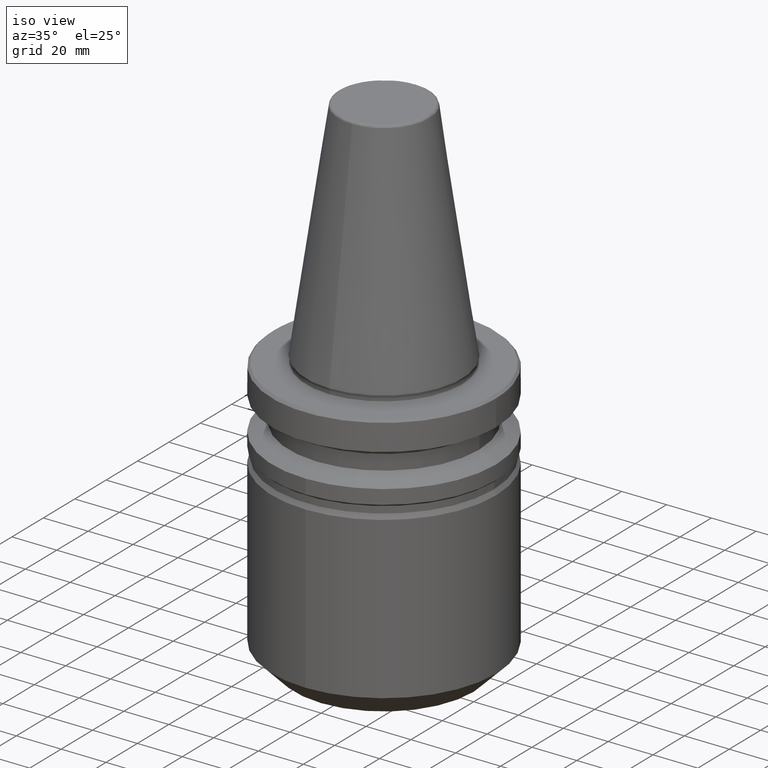
[diagram: clean part render]
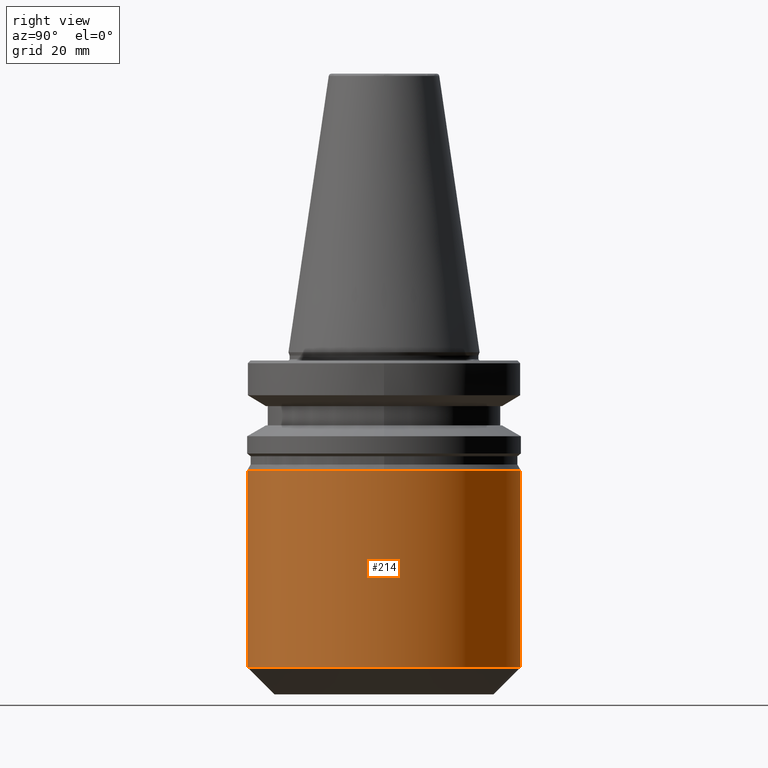
[diagram: tour spotlight — one face highlighted and labeled with its STEP entity id]
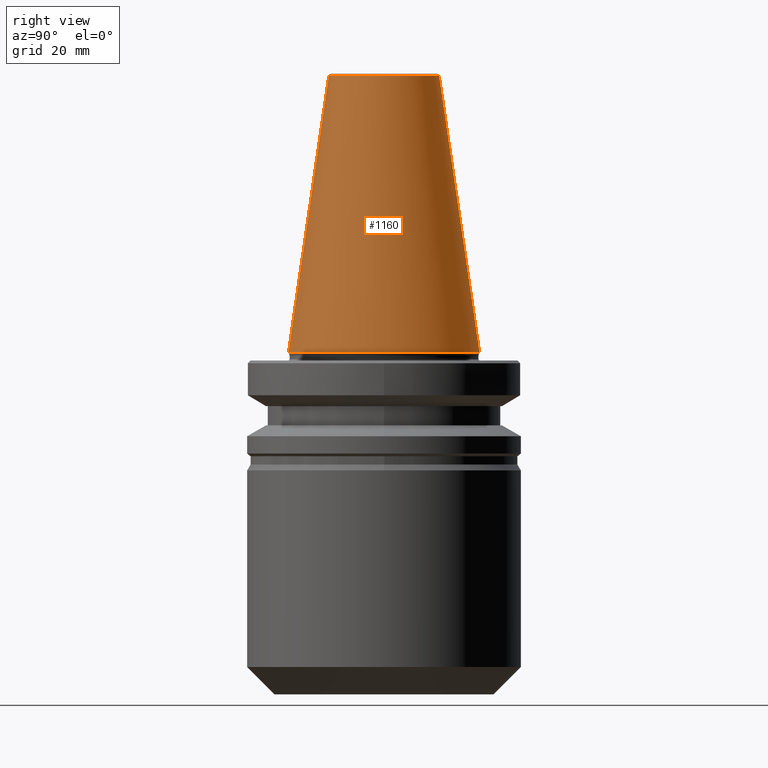
[diagram: tour spotlight — one face highlighted and labeled with its STEP entity id]
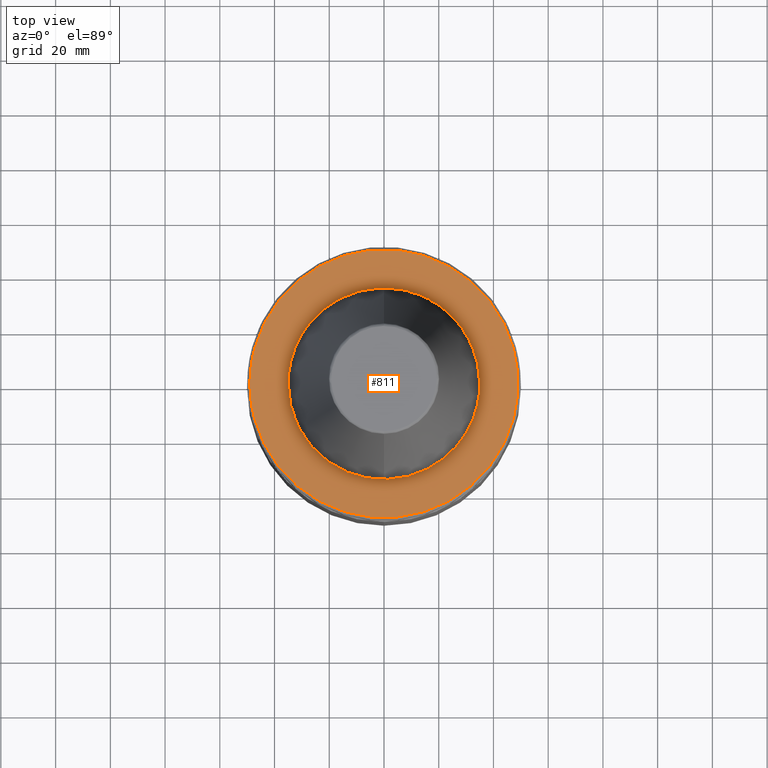
[diagram: tour spotlight — one face highlighted and labeled with its STEP entity id]
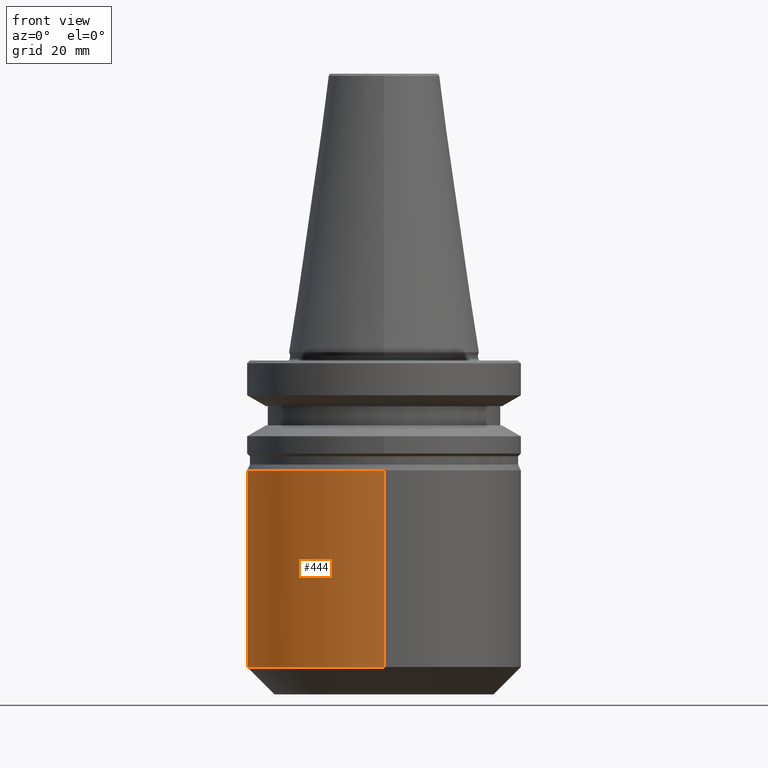
[diagram: tour spotlight — one face highlighted and labeled with its STEP entity id]
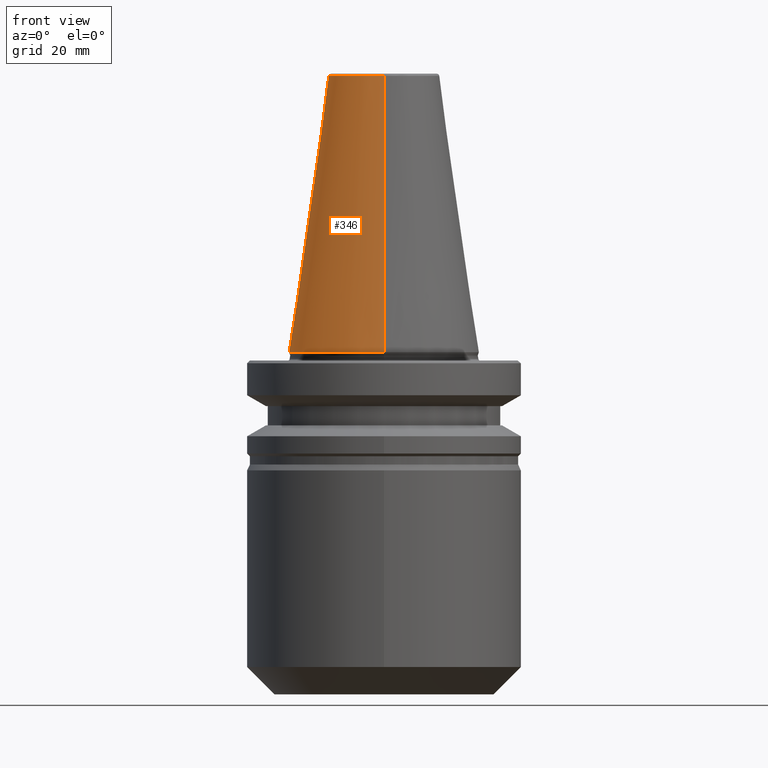
[diagram: tour spotlight — one face highlighted and labeled with its STEP entity id]
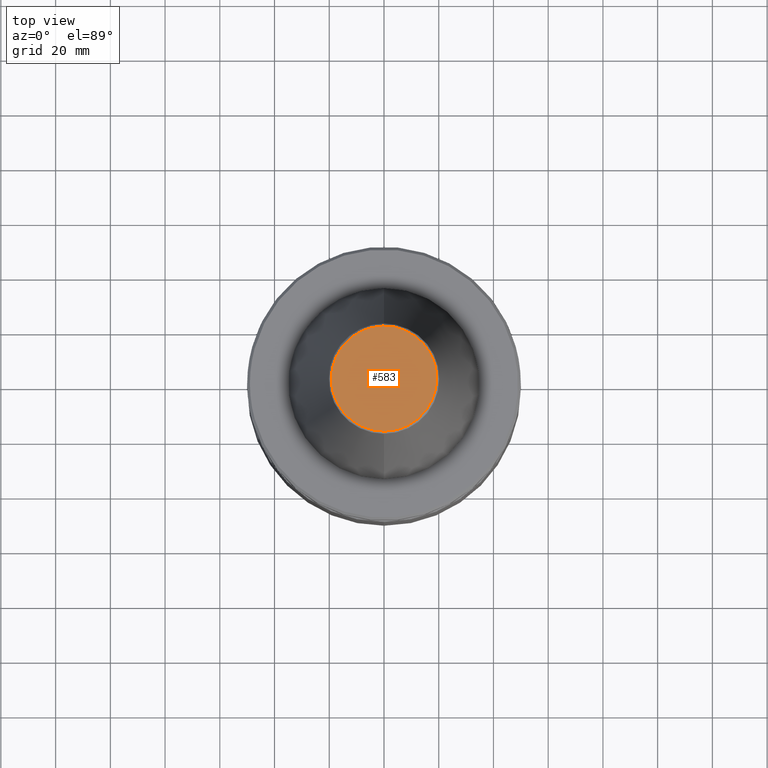
[diagram: tour spotlight — one face highlighted and labeled with its STEP entity id]
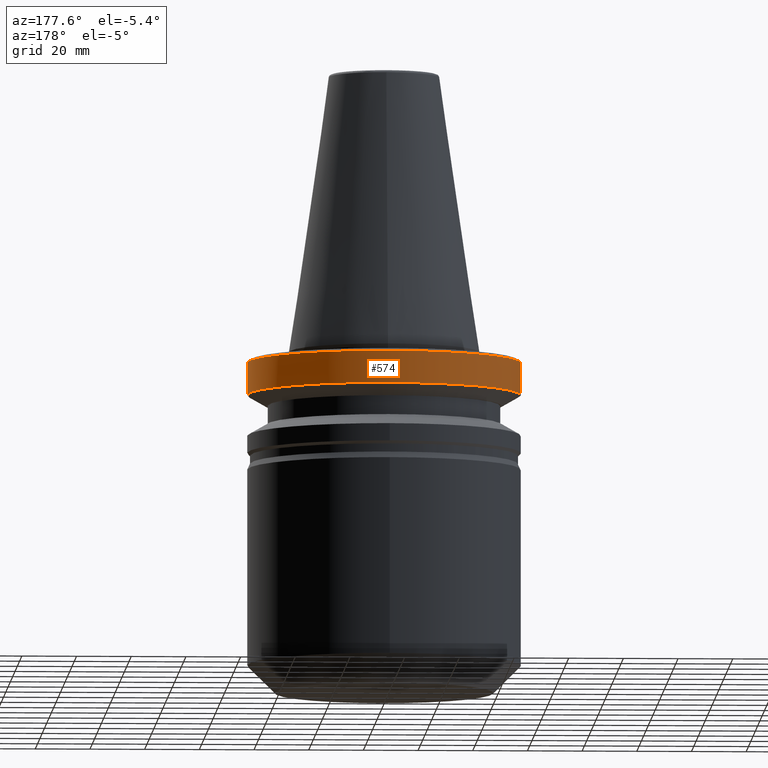
[diagram: tour spotlight — one face highlighted and labeled with its STEP entity id]
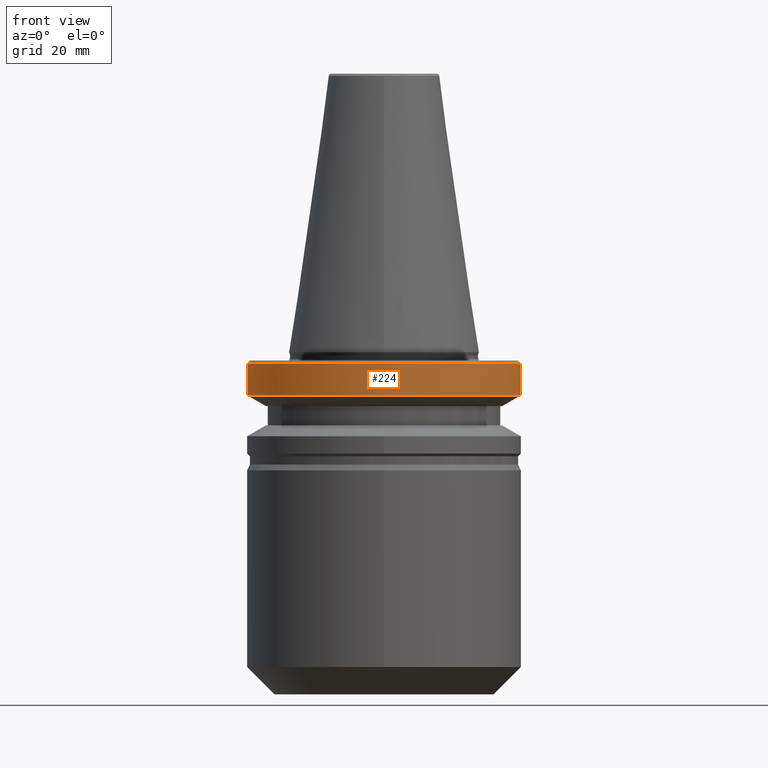
[diagram: tour spotlight — one face highlighted and labeled with its STEP entity id]
A machine part: a face-by-face anatomy tour. The part has 40 B-rep faces; the first image is the clean iso view, then the 8 largest visible faces are spotlighted one at a time (largest first), each with its STEP entity span.

Face 1 — right view, entity #214. In plain terms, the highlighted cylindrical surface (partial cylindrical patch) has radius 50 mm, axis along (0, -0, 1).
Definition (entity closure, byte-faithful):
#8 = VERTEX_POINT ( 'NONE', #1155 ) ;
#30 = EDGE_CURVE ( 'NONE', #860, #1299, #962, .T. ) ;
#48 = EDGE_CURVE ( 'NONE', #1287, #1272, #1075, .T. ) ;
#54 = FACE_OUTER_BOUND ( 'NONE', #942, .T. ) ;
#102 = CARTESIAN_POINT ( 'NONE',  ( 0.0000000000000000000, -50.00000000000000700, -43.14450692100000100 ) ) ;
#116 = CYLINDRICAL_SURFACE ( 'NONE', #936, 50.00000000000000000 ) ;
#122 = CARTESIAN_POINT ( 'NONE',  ( 6.123233995736766100E-015, 50.00000000000000000, -114.9999999999999900 ) ) ;
#123 = CARTESIAN_POINT ( 'NONE',  ( 50.00000000000001400, 0.0000000000000000000, -114.9999999999999900 ) ) ;
#173 = DIRECTION ( 'NONE',  ( 0.0000000000000000000, -1.387778780781445700E-016, 1.000000000000000000 ) ) ;
#174 = CARTESIAN_POINT ( 'NONE',  ( 6.123233995736766100E-015, 50.00000000000000000, -114.9999999999999900 ) ) ;
#214 = ADVANCED_FACE ( 'NONE', ( #54 ), #116, .T. ) ;
#398 = CARTESIAN_POINT ( 'NONE',  ( 0.0000000000000000000, -50.00000000000000000, -114.9999999999999900 ) ) ;
#464 = AXIS2_PLACEMENT_3D ( 'NONE', #1262, #1320, #1134 ) ;
#470 = CARTESIAN_POINT ( 'NONE',  ( 50.00000000000000000, 6.123233995736767700E-015, -43.14450692099999400 ) ) ;
#510 = EDGE_CURVE ( 'NONE', #932, #1299, #766, .T. ) ;
#542 = DIRECTION ( 'NONE',  ( 0.0000000000000000000, -1.000000000000000000, 0.0000000000000000000 ) ) ;
#543 = DIRECTION ( 'NONE',  ( 0.0000000000000000000, -1.387778780781445700E-016, 1.000000000000000000 ) ) ;
#544 = CARTESIAN_POINT ( 'NONE',  ( 0.0000000000000000000, -9.629649721936179300E-031, -114.9999999999999900 ) ) ;
#586 = EDGE_CURVE ( 'NONE', #8, #860, #1105, .T. ) ;
#712 = DIRECTION ( 'NONE',  ( -8.881784197001252300E-016, -1.000000000000000000, -1.387778780781445700E-016 ) ) ;
#713 = DIRECTION ( 'NONE',  ( -0.0000000000000000000, 1.387778780781445700E-016, -1.000000000000000000 ) ) ;
#714 = CARTESIAN_POINT ( 'NONE',  ( 0.0000000000000000000, -9.971952857762423800E-015, -43.14450692099999400 ) ) ;
#717 = ORIENTED_EDGE ( 'NONE', *, *, #30, .T. ) ;
#766 = LINE ( 'NONE', #773, #996 ) ;
#768 = ORIENTED_EDGE ( 'NONE', *, *, #586, .T. ) ;
#771 = DIRECTION ( 'NONE',  ( 0.0000000000000000000, -1.387778780781445700E-016, 1.000000000000000000 ) ) ;
#773 = CARTESIAN_POINT ( 'NONE',  ( 0.0000000000000000000, -50.00000000000000000, -115.0000000000000100 ) ) ;
#801 = EDGE_CURVE ( 'NONE', #932, #1287, #951, .T. ) ;
#835 = ORIENTED_EDGE ( 'NONE', *, *, #48, .T. ) ;
#860 = VERTEX_POINT ( 'NONE', #470 ) ;
#874 = ORIENTED_EDGE ( 'NONE', *, *, #1177, .T. ) ;
#916 = CARTESIAN_POINT ( 'NONE',  ( 0.0000000000000000000, 0.0000000000000000000, -115.0000000000000000 ) ) ;
#932 = VERTEX_POINT ( 'NONE', #398 ) ;
#936 = AXIS2_PLACEMENT_3D ( 'NONE', #916, #986, #1127 ) ;
#942 = EDGE_LOOP ( 'NONE', ( #835, #874, #768, #717, #1273, #1073 ) ) ;
#951 = CIRCLE ( 'NONE', #1326, 50.00000000000000000 ) ;
#962 = CIRCLE ( 'NONE', #464, 50.00000000000000000 ) ;
#986 = DIRECTION ( 'NONE',  ( 0.0000000000000000000, -1.387778780781445700E-016, 1.000000000000000000 ) ) ;
#996 = VECTOR ( 'NONE', #771, 1000.000000000000000 ) ;
#1004 = DIRECTION ( 'NONE',  ( 0.0000000000000000000, -1.387778780781445700E-016, 1.000000000000000000 ) ) ;
#1073 = ORIENTED_EDGE ( 'NONE', *, *, #801, .T. ) ;
#1075 = CIRCLE ( 'NONE', #1161, 50.00000000000000000 ) ;
#1105 = CIRCLE ( 'NONE', #1214, 50.00000000000000000 ) ;
#1127 = DIRECTION ( 'NONE',  ( 0.0000000000000000000, -1.000000000000000000, -2.775557561562891400E-016 ) ) ;
#1134 = DIRECTION ( 'NONE',  ( 1.776356839400250500E-015, -1.000000000000000000, -1.387778780781445700E-016 ) ) ;
#1135 = CARTESIAN_POINT ( 'NONE',  ( 0.0000000000000000000, -9.629649721936179300E-031, -114.9999999999999900 ) ) ;
#1155 = CARTESIAN_POINT ( 'NONE',  ( 6.123233995736765300E-015, 49.99999999999999300, -43.14450692099998700 ) ) ;
#1157 = VECTOR ( 'NONE', #173, 1000.000000000000000 ) ;
#1161 = AXIS2_PLACEMENT_3D ( 'NONE', #1135, #1004, #1237 ) ;
#1177 = EDGE_CURVE ( 'NONE', #1272, #8, #1217, .T. ) ;
#1214 = AXIS2_PLACEMENT_3D ( 'NONE', #714, #713, #712 ) ;
#1217 = LINE ( 'NONE', #174, #1157 ) ;
#1237 = DIRECTION ( 'NONE',  ( 0.0000000000000000000, -1.000000000000000000, 0.0000000000000000000 ) ) ;
#1262 = CARTESIAN_POINT ( 'NONE',  ( 0.0000000000000000000, -9.971952857762423800E-015, -43.14450692099999400 ) ) ;
#1272 = VERTEX_POINT ( 'NONE', #122 ) ;
#1273 = ORIENTED_EDGE ( 'NONE', *, *, #510, .F. ) ;
#1287 = VERTEX_POINT ( 'NONE', #123 ) ;
#1299 = VERTEX_POINT ( 'NONE', #102 ) ;
#1320 = DIRECTION ( 'NONE',  ( -0.0000000000000000000, 1.387778780781445700E-016, -1.000000000000000000 ) ) ;
#1326 = AXIS2_PLACEMENT_3D ( 'NONE', #544, #543, #542 ) ;

Face 2 — right view, entity #1160. In plain terms, the highlighted conical surface has half-angle 8.297 deg.
Definition (entity closure, byte-faithful):
#91 = AXIS2_PLACEMENT_3D ( 'NONE', #671, #670, #669 ) ;
#109 = FACE_OUTER_BOUND ( 'NONE', #493, .T. ) ;
#115 = VERTEX_POINT ( 'NONE', #1015 ) ;
#143 = AXIS2_PLACEMENT_3D ( 'NONE', #207, #205, #208 ) ;
#147 = AXIS2_PLACEMENT_3D ( 'NONE', #492, #490, #487 ) ;
#180 = EDGE_CURVE ( 'NONE', #115, #1055, #1329, .T. ) ;
#205 = DIRECTION ( 'NONE',  ( 0.0000000000000000000, -3.434447178715197200E-016, -1.000000000000000000 ) ) ;
#207 = CARTESIAN_POINT ( 'NONE',  ( 0.0000000000000000000, -3.469446951953614200E-014, -1.882981036151629500E-015 ) ) ;
#208 = DIRECTION ( 'NONE',  ( 0.0000000000000000000, 1.000000000000000000, -3.434447178715197200E-016 ) ) ;
#235 = VECTOR ( 'NONE', #1185, 1000.000000000000200 ) ;
#304 = ORIENTED_EDGE ( 'NONE', *, *, #606, .T. ) ;
#314 = CARTESIAN_POINT ( 'NONE',  ( 0.0000000000000000000, 34.92499999999996900, -1.376803197919400400E-014 ) ) ;
#331 = CARTESIAN_POINT ( 'NONE',  ( 4.277078946022131700E-015, -34.92500000000004000, 1.011182573551119800E-014 ) ) ;
#332 = DIRECTION ( 'NONE',  ( 1.767266086083724100E-017, -0.1443082272630906700, -0.9895327864927892000 ) ) ;
#338 = VERTEX_POINT ( 'NONE', #1151 ) ;
#354 = CARTESIAN_POINT ( 'NONE',  ( 2.474253865864370700E-015, -20.20381605199999700, 100.9443082270000800 ) ) ;
#386 = EDGE_CURVE ( 'NONE', #1055, #338, #457, .T. ) ;
#430 = VERTEX_POINT ( 'NONE', #829 ) ;
#457 = CIRCLE ( 'NONE', #1209, 34.92499999999999700 ) ;
#487 = DIRECTION ( 'NONE',  ( 0.0000000000000000000, 1.000000000000000000, 0.0000000000000000000 ) ) ;
#490 = DIRECTION ( 'NONE',  ( 0.0000000000000000000, -3.434447178715200600E-016, -1.000000000000000000 ) ) ;
#491 = ORIENTED_EDGE ( 'NONE', *, *, #180, .F. ) ;
#492 = CARTESIAN_POINT ( 'NONE',  ( 0.0000000000000000000, 1.848892746611746400E-029, 100.9443082270000600 ) ) ;
#493 = EDGE_LOOP ( 'NONE', ( #304, #697, #800, #491, #1238 ) ) ;
#502 = LINE ( 'NONE', #331, #1046 ) ;
#606 = EDGE_CURVE ( 'NONE', #430, #983, #1207, .T. ) ;
#669 = DIRECTION ( 'NONE',  ( 0.0000000000000000000, 1.000000000000000000, 0.0000000000000000000 ) ) ;
#670 = DIRECTION ( 'NONE',  ( 0.0000000000000000000, -3.434447178715200600E-016, -1.000000000000000000 ) ) ;
#671 = CARTESIAN_POINT ( 'NONE',  ( 0.0000000000000000000, 1.848892746611746400E-029, 100.9443082270000600 ) ) ;
#697 = ORIENTED_EDGE ( 'NONE', *, *, #1016, .T. ) ;
#800 = ORIENTED_EDGE ( 'NONE', *, *, #386, .F. ) ;
#829 = CARTESIAN_POINT ( 'NONE',  ( 20.20381605195830600, -2.071936372478352200E-009, 100.9443082269940000 ) ) ;
#833 = EDGE_CURVE ( 'NONE', #115, #430, #847, .T. ) ;
#847 = CIRCLE ( 'NONE', #147, 20.20381605199999300 ) ;
#923 = CARTESIAN_POINT ( 'NONE',  ( 0.0000000000000000000, -3.669562084625789500E-018, -1.387778780781445700E-014 ) ) ;
#983 = VERTEX_POINT ( 'NONE', #354 ) ;
#1015 = CARTESIAN_POINT ( 'NONE',  ( 0.0000000000000000000, 20.20381605199999300, 100.9443082270000500 ) ) ;
#1016 = EDGE_CURVE ( 'NONE', #983, #338, #502, .T. ) ;
#1033 = CARTESIAN_POINT ( 'NONE',  ( 0.0000000000000000000, 34.92499999999996900, -1.387778780781445700E-014 ) ) ;
#1046 = VECTOR ( 'NONE', #332, 1000.000000000000100 ) ;
#1055 = VERTEX_POINT ( 'NONE', #314 ) ;
#1146 = DIRECTION ( 'NONE',  ( 0.0000000000000000000, -1.000000000000000000, 8.692243616204474100E-017 ) ) ;
#1151 = CARTESIAN_POINT ( 'NONE',  ( 4.277078946022132500E-015, -34.92500000000004700, -1.398754363643491100E-014 ) ) ;
#1160 = ADVANCED_FACE ( 'NONE', ( #109 ), #1216, .T. ) ;
#1185 = DIRECTION ( 'NONE',  ( 0.0000000000000000000, 0.1443082272630900300, -0.9895327864927893100 ) ) ;
#1207 = CIRCLE ( 'NONE', #91, 20.20381605199999000 ) ;
#1209 = AXIS2_PLACEMENT_3D ( 'NONE', #923, #1256, #1146 ) ;
#1216 = CONICAL_SURFACE ( 'NONE', #143, 34.92500000000000400, 0.1448138465431578200 ) ;
#1238 = ORIENTED_EDGE ( 'NONE', *, *, #833, .T. ) ;
#1256 = DIRECTION ( 'NONE',  ( -0.0000000000000000000, 3.142614992711606800E-018, -1.000000000000000000 ) ) ;
#1329 = LINE ( 'NONE', #1033, #235 ) ;

Face 3 — top view, entity #811. In plain terms, the highlighted planar face has unit normal (0, 0, -1).
Definition (entity closure, byte-faithful):
#17 = CIRCLE ( 'NONE', #62, 48.99999999889558200 ) ;
#57 = AXIS2_PLACEMENT_3D ( 'NONE', #724, #722, #721 ) ;
#62 = AXIS2_PLACEMENT_3D ( 'NONE', #1340, #1342, #1065 ) ;
#73 = CARTESIAN_POINT ( 'NONE',  ( 34.99999999746265200, 0.0000000000000000000, -3.000000000159716200 ) ) ;
#74 = CARTESIAN_POINT ( 'NONE',  ( 34.99999999731420500, -69.99999999561070800, -3.000000000266193700 ) ) ;
#83 = CARTESIAN_POINT ( 'NONE',  ( -34.99999999731420500, -69.99999999561070800, -3.000000000266193700 ) ) ;
#87 = CARTESIAN_POINT ( 'NONE',  ( -34.99999999746265900, 0.0000000000000000000, -3.000000000159716700 ) ) ;
#119 = CIRCLE ( 'NONE', #1311, 48.99999999889558200 ) ;
#130 = EDGE_CURVE ( 'NONE', #795, #675, #1041, .T. ) ;
#139 =( BOUNDED_CURVE ( )  B_SPLINE_CURVE ( 3, ( #87, #83, #74, #73 ),
 .UNSPECIFIED., .F., .T. ) 
 B_SPLINE_CURVE_WITH_KNOTS ( ( 4, 4 ),
 ( 0.0000000000000000000, 1.000000000000000000 ),
 .UNSPECIFIED. ) 
 CURVE ( )  GEOMETRIC_REPRESENTATION_ITEM ( )  RATIONAL_B_SPLINE_CURVE ( ( 0.9565783004795990200, 0.3188594334931994500, 0.3188594334931994500, 0.9565783004795990200 ) ) 
 REPRESENTATION_ITEM ( '' )  );
#162 = CARTESIAN_POINT ( 'NONE',  ( -47.28506635177502900, 12.85000000000000100, -2.999999998895580300 ) ) ;
#191 = FACE_OUTER_BOUND ( 'NONE', #1042, .T. ) ;
#201 = EDGE_CURVE ( 'NONE', #795, #861, #17, .T. ) ;
#237 = ORIENTED_EDGE ( 'NONE', *, *, #508, .F. ) ;
#244 = EDGE_CURVE ( 'NONE', #1206, #861, #119, .T. ) ;
#254 = VERTEX_POINT ( 'NONE', #972 ) ;
#364 = EDGE_CURVE ( 'NONE', #1206, #917, #474, .T. ) ;
#396 = CARTESIAN_POINT ( 'NONE',  ( -48.99999999889558200, 0.0000000000000000000, -2.999999998895580300 ) ) ;
#438 =( BOUNDED_CURVE ( )  B_SPLINE_CURVE ( 3, ( #804, #1007, #779, #778 ),
 .UNSPECIFIED., .F., .F. ) 
 B_SPLINE_CURVE_WITH_KNOTS ( ( 4, 4 ),
 ( 0.0000000000000000000, 1.000000000000000000 ),
 .UNSPECIFIED. ) 
 CURVE ( )  GEOMETRIC_REPRESENTATION_ITEM ( )  RATIONAL_B_SPLINE_CURVE ( ( 0.9565783004795934700, 0.3188594334931975600, 0.3188594334931975600, 0.9565783004795934700 ) ) 
 REPRESENTATION_ITEM ( '' )  );
#442 = FACE_BOUND ( 'NONE', #1204, .T. ) ;
#469 = CARTESIAN_POINT ( 'NONE',  ( 47.28506635177502900, 12.85000000000000100, -2.999999998895580300 ) ) ;
#474 = CIRCLE ( 'NONE', #828, 48.99999999889558200 ) ;
#508 = EDGE_CURVE ( 'NONE', #254, #509, #438, .T. ) ;
#509 = VERTEX_POINT ( 'NONE', #926 ) ;
#536 = DIRECTION ( 'NONE',  ( -1.000000000000000000, 0.0000000000000000000, -0.0000000000000000000 ) ) ;
#538 = DIRECTION ( 'NONE',  ( 0.0000000000000000000, 0.0000000000000000000, -1.000000000000000000 ) ) ;
#539 = PLANE ( 'NONE',  #1008 ) ;
#554 = CARTESIAN_POINT ( 'NONE',  ( 47.28506635177502900, -12.85000000000000100, -2.999999998895580300 ) ) ;
#557 = CARTESIAN_POINT ( 'NONE',  ( 47.85248714899999100, -49.58800000000000100, -3.000000000000000000 ) ) ;
#585 = EDGE_CURVE ( 'NONE', #917, #675, #1078, .T. ) ;
#629 = ORIENTED_EDGE ( 'NONE', *, *, #585, .T. ) ;
#666 = CARTESIAN_POINT ( 'NONE',  ( -47.28506635155802200, -12.85000000000000100, -2.999999998686164700 ) ) ;
#675 = VERTEX_POINT ( 'NONE', #666 ) ;
#715 = ORIENTED_EDGE ( 'NONE', *, *, #130, .F. ) ;
#721 = DIRECTION ( 'NONE',  ( 1.000000000000000000, 0.0000000000000000000, 0.0000000000000000000 ) ) ;
#722 = DIRECTION ( 'NONE',  ( -0.0000000000000000000, -0.0000000000000000000, 1.000000000000000000 ) ) ;
#724 = CARTESIAN_POINT ( 'NONE',  ( 0.0000000000000000000, 0.0000000000000000000, -2.999999998895580300 ) ) ;
#742 = ORIENTED_EDGE ( 'NONE', *, *, #364, .T. ) ;
#778 = CARTESIAN_POINT ( 'NONE',  ( -34.99999999746265900, 0.0000000000000000000, -3.000000000159716700 ) ) ;
#779 = CARTESIAN_POINT ( 'NONE',  ( -34.99999999731419800, 69.99999999561070800, -3.000000000266194200 ) ) ;
#795 = VERTEX_POINT ( 'NONE', #554 ) ;
#804 = CARTESIAN_POINT ( 'NONE',  ( 34.99999999746265200, 0.0000000000000000000, -3.000000000159716200 ) ) ;
#811 = ADVANCED_FACE ( 'NONE', ( #191, #442 ), #539, .F. ) ;
#822 = ORIENTED_EDGE ( 'NONE', *, *, #201, .T. ) ;
#828 = AXIS2_PLACEMENT_3D ( 'NONE', #910, #1332, #927 ) ;
#845 = AXIS2_PLACEMENT_3D ( 'NONE', #1291, #1212, #1031 ) ;
#861 = VERTEX_POINT ( 'NONE', #469 ) ;
#892 = ORIENTED_EDGE ( 'NONE', *, *, #244, .F. ) ;
#910 = CARTESIAN_POINT ( 'NONE',  ( 0.0000000000000000000, 0.0000000000000000000, -2.999999998895580300 ) ) ;
#917 = VERTEX_POINT ( 'NONE', #396 ) ;
#926 = CARTESIAN_POINT ( 'NONE',  ( -34.99999999746265900, 0.0000000000000000000, -3.000000000159716700 ) ) ;
#927 = DIRECTION ( 'NONE',  ( 1.000000000000000000, 0.0000000000000000000, 0.0000000000000000000 ) ) ;
#934 = DIRECTION ( 'NONE',  ( 0.0000000000000000000, 0.0000000000000000000, -1.000000000000000000 ) ) ;
#935 = CARTESIAN_POINT ( 'NONE',  ( 0.0000000000000000000, 0.0000000000000000000, -2.999999998895580300 ) ) ;
#972 = CARTESIAN_POINT ( 'NONE',  ( 34.99999999746265200, 0.0000000000000000000, -3.000000000159716200 ) ) ;
#1007 = CARTESIAN_POINT ( 'NONE',  ( 34.99999999731419800, 69.99999999561070800, -3.000000000266194200 ) ) ;
#1008 = AXIS2_PLACEMENT_3D ( 'NONE', #557, #538, #536 ) ;
#1019 = DIRECTION ( 'NONE',  ( -1.000000000000000000, 0.0000000000000000000, 0.0000000000000000000 ) ) ;
#1031 = DIRECTION ( 'NONE',  ( -1.000000000000000000, 0.0000000000000000000, 0.0000000000000000000 ) ) ;
#1041 = CIRCLE ( 'NONE', #845, 48.99999999836879300 ) ;
#1042 = EDGE_LOOP ( 'NONE', ( #892, #742, #629, #715, #822 ) ) ;
#1065 = DIRECTION ( 'NONE',  ( 1.000000000000000000, 0.0000000000000000000, 0.0000000000000000000 ) ) ;
#1078 = CIRCLE ( 'NONE', #57, 48.99999999889558200 ) ;
#1204 = EDGE_LOOP ( 'NONE', ( #237, #1240 ) ) ;
#1206 = VERTEX_POINT ( 'NONE', #162 ) ;
#1212 = DIRECTION ( 'NONE',  ( 0.0000000000000000000, 0.0000000000000000000, -1.000000000000000000 ) ) ;
#1240 = ORIENTED_EDGE ( 'NONE', *, *, #1308, .F. ) ;
#1291 = CARTESIAN_POINT ( 'NONE',  ( 0.0000000000000000000, 0.0000000000000000000, -2.999999998368790200 ) ) ;
#1308 = EDGE_CURVE ( 'NONE', #509, #254, #139, .T. ) ;
#1311 = AXIS2_PLACEMENT_3D ( 'NONE', #935, #934, #1019 ) ;
#1332 = DIRECTION ( 'NONE',  ( -0.0000000000000000000, -0.0000000000000000000, 1.000000000000000000 ) ) ;
#1340 = CARTESIAN_POINT ( 'NONE',  ( 0.0000000000000000000, 0.0000000000000000000, -2.999999998895580300 ) ) ;
#1342 = DIRECTION ( 'NONE',  ( -0.0000000000000000000, -0.0000000000000000000, 1.000000000000000000 ) ) ;

Face 4 — front view, entity #444. In plain terms, the highlighted cylindrical surface (partial cylindrical patch) has radius 50 mm, axis along (0, -0, 1).
Definition (entity closure, byte-faithful):
#8 = VERTEX_POINT ( 'NONE', #1155 ) ;
#51 = DIRECTION ( 'NONE',  ( 0.0000000000000000000, -1.000000000000000000, 0.0000000000000000000 ) ) ;
#52 = DIRECTION ( 'NONE',  ( 0.0000000000000000000, -1.387778780781445700E-016, 1.000000000000000000 ) ) ;
#55 = CARTESIAN_POINT ( 'NONE',  ( 0.0000000000000000000, -9.629649721936179300E-031, -114.9999999999999900 ) ) ;
#102 = CARTESIAN_POINT ( 'NONE',  ( 0.0000000000000000000, -50.00000000000000700, -43.14450692100000100 ) ) ;
#112 = CARTESIAN_POINT ( 'NONE',  ( 0.0000000000000000000, 0.0000000000000000000, -115.0000000000000000 ) ) ;
#122 = CARTESIAN_POINT ( 'NONE',  ( 6.123233995736766100E-015, 50.00000000000000000, -114.9999999999999900 ) ) ;
#173 = DIRECTION ( 'NONE',  ( 0.0000000000000000000, -1.387778780781445700E-016, 1.000000000000000000 ) ) ;
#174 = CARTESIAN_POINT ( 'NONE',  ( 6.123233995736766100E-015, 50.00000000000000000, -114.9999999999999900 ) ) ;
#176 = CIRCLE ( 'NONE', #667, 50.00000000000000000 ) ;
#202 = ORIENTED_EDGE ( 'NONE', *, *, #1346, .T. ) ;
#217 = ORIENTED_EDGE ( 'NONE', *, *, #1036, .T. ) ;
#241 = DIRECTION ( 'NONE',  ( 0.0000000000000000000, -1.000000000000000000, 0.0000000000000000000 ) ) ;
#242 = DIRECTION ( 'NONE',  ( 0.0000000000000000000, -1.387778780781445700E-016, 1.000000000000000000 ) ) ;
#243 = CARTESIAN_POINT ( 'NONE',  ( 0.0000000000000000000, -9.629649721936179300E-031, -114.9999999999999900 ) ) ;
#305 = DIRECTION ( 'NONE',  ( 0.0000000000000000000, -1.000000000000000000, -1.387778780781445700E-016 ) ) ;
#310 = DIRECTION ( 'NONE',  ( -0.0000000000000000000, 1.387778780781445700E-016, -1.000000000000000000 ) ) ;
#311 = CARTESIAN_POINT ( 'NONE',  ( 0.0000000000000000000, -9.971952857762423800E-015, -43.14450692099999400 ) ) ;
#350 = CIRCLE ( 'NONE', #374, 50.00000000000000000 ) ;
#374 = AXIS2_PLACEMENT_3D ( 'NONE', #243, #242, #241 ) ;
#398 = CARTESIAN_POINT ( 'NONE',  ( 0.0000000000000000000, -50.00000000000000000, -114.9999999999999900 ) ) ;
#440 = CIRCLE ( 'NONE', #1174, 50.00000000000000000 ) ;
#444 = ADVANCED_FACE ( 'NONE', ( #820 ), #841, .T. ) ;
#510 = EDGE_CURVE ( 'NONE', #932, #1299, #766, .T. ) ;
#547 = CARTESIAN_POINT ( 'NONE',  ( -50.00000000000001400, 6.123233995736767700E-015, -114.9999999999999900 ) ) ;
#549 = VERTEX_POINT ( 'NONE', #757 ) ;
#602 = AXIS2_PLACEMENT_3D ( 'NONE', #112, #830, #827 ) ;
#624 = DIRECTION ( 'NONE',  ( 0.0000000000000000000, -1.000000000000000000, -1.387778780781445700E-016 ) ) ;
#625 = DIRECTION ( 'NONE',  ( -0.0000000000000000000, 1.387778780781445700E-016, -1.000000000000000000 ) ) ;
#630 = CARTESIAN_POINT ( 'NONE',  ( 0.0000000000000000000, -9.971952857762423800E-015, -43.14450692099999400 ) ) ;
#667 = AXIS2_PLACEMENT_3D ( 'NONE', #55, #52, #51 ) ;
#681 = EDGE_CURVE ( 'NONE', #549, #8, #1228, .T. ) ;
#730 = ORIENTED_EDGE ( 'NONE', *, *, #681, .T. ) ;
#757 = CARTESIAN_POINT ( 'NONE',  ( -50.00000000000000000, 0.0000000000000000000, -43.14450692099999400 ) ) ;
#766 = LINE ( 'NONE', #773, #996 ) ;
#771 = DIRECTION ( 'NONE',  ( 0.0000000000000000000, -1.387778780781445700E-016, 1.000000000000000000 ) ) ;
#773 = CARTESIAN_POINT ( 'NONE',  ( 0.0000000000000000000, -50.00000000000000000, -115.0000000000000100 ) ) ;
#798 = VERTEX_POINT ( 'NONE', #547 ) ;
#820 = FACE_OUTER_BOUND ( 'NONE', #1294, .T. ) ;
#827 = DIRECTION ( 'NONE',  ( 0.0000000000000000000, -1.000000000000000000, -2.775557561562891400E-016 ) ) ;
#830 = DIRECTION ( 'NONE',  ( 0.0000000000000000000, -1.387778780781445700E-016, 1.000000000000000000 ) ) ;
#841 = CYLINDRICAL_SURFACE ( 'NONE', #602, 50.00000000000000000 ) ;
#842 = AXIS2_PLACEMENT_3D ( 'NONE', #630, #625, #624 ) ;
#853 = ORIENTED_EDGE ( 'NONE', *, *, #1177, .F. ) ;
#932 = VERTEX_POINT ( 'NONE', #398 ) ;
#996 = VECTOR ( 'NONE', #771, 1000.000000000000000 ) ;
#1036 = EDGE_CURVE ( 'NONE', #1299, #549, #440, .T. ) ;
#1122 = EDGE_CURVE ( 'NONE', #798, #932, #350, .T. ) ;
#1155 = CARTESIAN_POINT ( 'NONE',  ( 6.123233995736765300E-015, 49.99999999999999300, -43.14450692099998700 ) ) ;
#1157 = VECTOR ( 'NONE', #173, 1000.000000000000000 ) ;
#1174 = AXIS2_PLACEMENT_3D ( 'NONE', #311, #310, #305 ) ;
#1177 = EDGE_CURVE ( 'NONE', #1272, #8, #1217, .T. ) ;
#1217 = LINE ( 'NONE', #174, #1157 ) ;
#1228 = CIRCLE ( 'NONE', #842, 50.00000000000000000 ) ;
#1268 = ORIENTED_EDGE ( 'NONE', *, *, #1122, .T. ) ;
#1272 = VERTEX_POINT ( 'NONE', #122 ) ;
#1294 = EDGE_LOOP ( 'NONE', ( #853, #202, #1268, #1313, #217, #730 ) ) ;
#1299 = VERTEX_POINT ( 'NONE', #102 ) ;
#1313 = ORIENTED_EDGE ( 'NONE', *, *, #510, .T. ) ;
#1346 = EDGE_CURVE ( 'NONE', #1272, #798, #176, .T. ) ;

Face 5 — front view, entity #346. In plain terms, the highlighted conical surface has half-angle 8.297 deg.
Definition (entity closure, byte-faithful):
#41 = ORIENTED_EDGE ( 'NONE', *, *, #1045, .T. ) ;
#115 = VERTEX_POINT ( 'NONE', #1015 ) ;
#160 = CIRCLE ( 'NONE', #735, 20.20381605199999000 ) ;
#180 = EDGE_CURVE ( 'NONE', #115, #1055, #1329, .T. ) ;
#213 = ORIENTED_EDGE ( 'NONE', *, *, #180, .T. ) ;
#235 = VECTOR ( 'NONE', #1185, 1000.000000000000200 ) ;
#249 = ORIENTED_EDGE ( 'NONE', *, *, #913, .T. ) ;
#298 = DIRECTION ( 'NONE',  ( 0.0000000000000000000, 1.000000000000000000, 0.0000000000000000000 ) ) ;
#299 = DIRECTION ( 'NONE',  ( 0.0000000000000000000, -3.434447178715200600E-016, -1.000000000000000000 ) ) ;
#300 = CARTESIAN_POINT ( 'NONE',  ( 0.0000000000000000000, 1.848892746611746400E-029, 100.9443082270000600 ) ) ;
#314 = CARTESIAN_POINT ( 'NONE',  ( 0.0000000000000000000, 34.92499999999996900, -1.376803197919400400E-014 ) ) ;
#331 = CARTESIAN_POINT ( 'NONE',  ( 4.277078946022131700E-015, -34.92500000000004000, 1.011182573551119800E-014 ) ) ;
#332 = DIRECTION ( 'NONE',  ( 1.767266086083724100E-017, -0.1443082272630906700, -0.9895327864927892000 ) ) ;
#338 = VERTEX_POINT ( 'NONE', #1151 ) ;
#346 = ADVANCED_FACE ( 'NONE', ( #477 ), #592, .T. ) ;
#354 = CARTESIAN_POINT ( 'NONE',  ( 2.474253865864370700E-015, -20.20381605199999700, 100.9443082270000800 ) ) ;
#384 = DIRECTION ( 'NONE',  ( 0.0000000000000000000, -1.000000000000000000, 8.692243616204474100E-017 ) ) ;
#385 = DIRECTION ( 'NONE',  ( -0.0000000000000000000, 3.142614992711606800E-018, -1.000000000000000000 ) ) ;
#387 = CARTESIAN_POINT ( 'NONE',  ( 0.0000000000000000000, -3.669562084625789500E-018, -1.387778780781445700E-014 ) ) ;
#400 = DIRECTION ( 'NONE',  ( 0.0000000000000000000, 1.000000000000000000, 0.0000000000000000000 ) ) ;
#401 = DIRECTION ( 'NONE',  ( 0.0000000000000000000, -3.434447178715200600E-016, -1.000000000000000000 ) ) ;
#402 = CARTESIAN_POINT ( 'NONE',  ( 0.0000000000000000000, 1.848892746611746400E-029, 100.9443082270000600 ) ) ;
#475 = VERTEX_POINT ( 'NONE', #794 ) ;
#476 = ORIENTED_EDGE ( 'NONE', *, *, #1016, .F. ) ;
#477 = FACE_OUTER_BOUND ( 'NONE', #1327, .T. ) ;
#497 = ORIENTED_EDGE ( 'NONE', *, *, #928, .F. ) ;
#502 = LINE ( 'NONE', #331, #1046 ) ;
#592 = CONICAL_SURFACE ( 'NONE', #1056, 34.92500000000000400, 0.1448138465431578200 ) ;
#735 = AXIS2_PLACEMENT_3D ( 'NONE', #300, #299, #298 ) ;
#789 = CIRCLE ( 'NONE', #1133, 20.20381605199999300 ) ;
#794 = CARTESIAN_POINT ( 'NONE',  ( -20.20381605195830600, -6.047361685486881700E-010, 100.9443082269940000 ) ) ;
#878 = AXIS2_PLACEMENT_3D ( 'NONE', #387, #385, #384 ) ;
#913 = EDGE_CURVE ( 'NONE', #475, #115, #789, .T. ) ;
#928 = EDGE_CURVE ( 'NONE', #338, #1055, #1002, .T. ) ;
#983 = VERTEX_POINT ( 'NONE', #354 ) ;
#1002 = CIRCLE ( 'NONE', #878, 34.92499999999999700 ) ;
#1015 = CARTESIAN_POINT ( 'NONE',  ( 0.0000000000000000000, 20.20381605199999300, 100.9443082270000500 ) ) ;
#1016 = EDGE_CURVE ( 'NONE', #983, #338, #502, .T. ) ;
#1033 = CARTESIAN_POINT ( 'NONE',  ( 0.0000000000000000000, 34.92499999999996900, -1.387778780781445700E-014 ) ) ;
#1045 = EDGE_CURVE ( 'NONE', #983, #475, #160, .T. ) ;
#1046 = VECTOR ( 'NONE', #332, 1000.000000000000100 ) ;
#1055 = VERTEX_POINT ( 'NONE', #314 ) ;
#1056 = AXIS2_PLACEMENT_3D ( 'NONE', #1306, #1247, #1114 ) ;
#1114 = DIRECTION ( 'NONE',  ( 0.0000000000000000000, 1.000000000000000000, -3.434447178715197200E-016 ) ) ;
#1133 = AXIS2_PLACEMENT_3D ( 'NONE', #402, #401, #400 ) ;
#1151 = CARTESIAN_POINT ( 'NONE',  ( 4.277078946022132500E-015, -34.92500000000004700, -1.398754363643491100E-014 ) ) ;
#1185 = DIRECTION ( 'NONE',  ( 0.0000000000000000000, 0.1443082272630900300, -0.9895327864927893100 ) ) ;
#1247 = DIRECTION ( 'NONE',  ( 0.0000000000000000000, -3.434447178715197200E-016, -1.000000000000000000 ) ) ;
#1306 = CARTESIAN_POINT ( 'NONE',  ( 0.0000000000000000000, -3.469446951953614200E-014, -1.882981036151629500E-015 ) ) ;
#1327 = EDGE_LOOP ( 'NONE', ( #476, #41, #249, #213, #497 ) ) ;
#1329 = LINE ( 'NONE', #1033, #235 ) ;

Face 6 — top view, entity #583. In plain terms, the highlighted planar face has unit normal (0, 0, -1).
Definition (entity closure, byte-faithful):
#67 = CARTESIAN_POINT ( 'NONE',  ( 19.21428326074989500, 0.0000000000000000000, 101.7999999998288700 ) ) ;
#68 = CARTESIAN_POINT ( 'NONE',  ( 19.21428326062251600, 38.42856652208892900, 101.7999999997148400 ) ) ;
#78 = CARTESIAN_POINT ( 'NONE',  ( -19.21428326074989800, 0.0000000000000000000, 101.7999999998288700 ) ) ;
#81 = CARTESIAN_POINT ( 'NONE',  ( -19.21428326062251600, 38.42856652208892900, 101.7999999997148400 ) ) ;
#131 = CARTESIAN_POINT ( 'NONE',  ( 19.21428326074989500, 0.0000000000000000000, 101.7999999998288700 ) ) ;
#177 = CARTESIAN_POINT ( 'NONE',  ( -19.21428326074989800, 0.0000000000000000000, 101.7999999998288700 ) ) ;
#428 = EDGE_CURVE ( 'NONE', #1289, #1225, #1171, .T. ) ;
#583 = ADVANCED_FACE ( 'NONE', ( #918 ), #736, .F. ) ;
#632 = ORIENTED_EDGE ( 'NONE', *, *, #428, .F. ) ;
#732 = DIRECTION ( 'NONE',  ( -1.000000000000000000, 0.0000000000000000000, -0.0000000000000000000 ) ) ;
#734 = DIRECTION ( 'NONE',  ( 0.0000000000000000000, 0.0000000000000000000, -1.000000000000000000 ) ) ;
#736 = PLANE ( 'NONE',  #1085 ) ;
#747 = CARTESIAN_POINT ( 'NONE',  ( 19.44485466400000500, -19.44485466400000500, 101.8000000000000000 ) ) ;
#834 = CARTESIAN_POINT ( 'NONE',  ( -19.21428326074989800, 0.0000000000000000000, 101.7999999998288700 ) ) ;
#840 = CARTESIAN_POINT ( 'NONE',  ( 19.21428326074989500, 0.0000000000000000000, 101.7999999998288700 ) ) ;
#849 = CARTESIAN_POINT ( 'NONE',  ( -19.21428326062251200, -38.42856652208891400, 101.7999999997147900 ) ) ;
#852 = CARTESIAN_POINT ( 'NONE',  ( 19.21428326062251200, -38.42856652208891400, 101.7999999997147900 ) ) ;
#918 = FACE_OUTER_BOUND ( 'NONE', #919, .T. ) ;
#919 = EDGE_LOOP ( 'NONE', ( #1044, #632 ) ) ;
#1044 = ORIENTED_EDGE ( 'NONE', *, *, #1335, .F. ) ;
#1068 =( BOUNDED_CURVE ( )  B_SPLINE_CURVE ( 3, ( #78, #81, #68, #67 ),
 .UNSPECIFIED., .F., .T. ) 
 B_SPLINE_CURVE_WITH_KNOTS ( ( 4, 4 ),
 ( 0.0000000000000000000, 1.000000000000000000 ),
 .UNSPECIFIED. ) 
 CURVE ( )  GEOMETRIC_REPRESENTATION_ITEM ( )  RATIONAL_B_SPLINE_CURVE ( ( 0.9606698271414653200, 0.3202232757138215900, 0.3202232757138215900, 0.9606698271414653200 ) ) 
 REPRESENTATION_ITEM ( '' )  );
#1085 = AXIS2_PLACEMENT_3D ( 'NONE', #747, #734, #732 ) ;
#1171 =( BOUNDED_CURVE ( )  B_SPLINE_CURVE ( 3, ( #840, #852, #849, #834 ),
 .UNSPECIFIED., .F., .F. ) 
 B_SPLINE_CURVE_WITH_KNOTS ( ( 4, 4 ),
 ( 0.0000000000000000000, 1.000000000000000000 ),
 .UNSPECIFIED. ) 
 CURVE ( )  GEOMETRIC_REPRESENTATION_ITEM ( )  RATIONAL_B_SPLINE_CURVE ( ( 0.9606698271414647600, 0.3202232757138215300, 0.3202232757138215300, 0.9606698271414647600 ) ) 
 REPRESENTATION_ITEM ( '' )  );
#1225 = VERTEX_POINT ( 'NONE', #177 ) ;
#1289 = VERTEX_POINT ( 'NONE', #131 ) ;
#1335 = EDGE_CURVE ( 'NONE', #1225, #1289, #1068, .T. ) ;

Face 7 — auxiliary view, entity #574. In plain terms, the highlighted cylindrical surface (partial cylindrical patch) has radius 50 mm, axis along (0, 0, 1).
Definition (entity closure, byte-faithful):
#56 = CIRCLE ( 'NONE', #1316, 50.00000000000000000 ) ;
#117 = VERTEX_POINT ( 'NONE', #1184 ) ;
#188 = CIRCLE ( 'NONE', #460, 50.00000000000000000 ) ;
#189 = EDGE_CURVE ( 'NONE', #960, #1061, #770, .T. ) ;
#222 = EDGE_CURVE ( 'NONE', #494, #696, #56, .T. ) ;
#238 = EDGE_CURVE ( 'NONE', #1061, #247, #188, .T. ) ;
#246 = DIRECTION ( 'NONE',  ( -1.000000000000000000, 0.0000000000000000000, 3.469446951887684500E-017 ) ) ;
#247 = VERTEX_POINT ( 'NONE', #968 ) ;
#248 = DIRECTION ( 'NONE',  ( -0.0000000000000000000, -0.0000000000000000000, 1.000000000000000000 ) ) ;
#250 = CARTESIAN_POINT ( 'NONE',  ( 0.0000000000000000000, 0.0000000000000000000, -4.000000000950146600 ) ) ;
#266 = ORIENTED_EDGE ( 'NONE', *, *, #222, .F. ) ;
#292 = CARTESIAN_POINT ( 'NONE',  ( 50.00000000000000000, 0.0000000000000000000, -4.000000000950132400 ) ) ;
#391 = CARTESIAN_POINT ( 'NONE',  ( 50.00000000000000000, 0.0000000000000000000, -15.72263360760098300 ) ) ;
#393 = ORIENTED_EDGE ( 'NONE', *, *, #672, .T. ) ;
#460 = AXIS2_PLACEMENT_3D ( 'NONE', #975, #939, #938 ) ;
#494 = VERTEX_POINT ( 'NONE', #790 ) ;
#574 = ADVANCED_FACE ( 'NONE', ( #1054 ), #1104, .T. ) ;
#604 = AXIS2_PLACEMENT_3D ( 'NONE', #780, #750, #752 ) ;
#619 = CARTESIAN_POINT ( 'NONE',  ( -50.00000000000000000, 6.123233995736766100E-015, -4.000000000950132400 ) ) ;
#639 = DIRECTION ( 'NONE',  ( 1.000000000000000000, 0.0000000000000000000, 0.0000000000000000000 ) ) ;
#641 = DIRECTION ( 'NONE',  ( -0.0000000000000000000, -0.0000000000000000000, 1.000000000000000000 ) ) ;
#642 = CARTESIAN_POINT ( 'NONE',  ( 0.0000000000000000000, 0.0000000000000000000, -15.72263360760098300 ) ) ;
#647 = DIRECTION ( 'NONE',  ( 0.0000000000000000000, 0.0000000000000000000, 1.000000000000000000 ) ) ;
#648 = CARTESIAN_POINT ( 'NONE',  ( -50.00000000000000000, 6.123233995736766100E-015, -15.70022000299999700 ) ) ;
#672 = EDGE_CURVE ( 'NONE', #960, #117, #1057, .T. ) ;
#679 = EDGE_CURVE ( 'NONE', #117, #696, #1239, .T. ) ;
#692 = EDGE_LOOP ( 'NONE', ( #393, #902, #266, #888, #1077, #889 ) ) ;
#696 = VERTEX_POINT ( 'NONE', #619 ) ;
#750 = DIRECTION ( 'NONE',  ( 0.0000000000000000000, 0.0000000000000000000, 1.000000000000000000 ) ) ;
#752 = DIRECTION ( 'NONE',  ( 1.000000000000000000, 0.0000000000000000000, 0.0000000000000000000 ) ) ;
#770 = LINE ( 'NONE', #1300, #1189 ) ;
#780 = CARTESIAN_POINT ( 'NONE',  ( 0.0000000000000000000, 0.0000000000000000000, -15.70022000299999700 ) ) ;
#790 = CARTESIAN_POINT ( 'NONE',  ( -48.13724170496111300, 13.52057546993295400, -4.000000000950132400 ) ) ;
#851 = AXIS2_PLACEMENT_3D ( 'NONE', #642, #641, #639 ) ;
#888 = ORIENTED_EDGE ( 'NONE', *, *, #1112, .F. ) ;
#889 = ORIENTED_EDGE ( 'NONE', *, *, #189, .F. ) ;
#902 = ORIENTED_EDGE ( 'NONE', *, *, #679, .T. ) ;
#938 = DIRECTION ( 'NONE',  ( 1.000000000000000000, 0.0000000000000000000, 0.0000000000000000000 ) ) ;
#939 = DIRECTION ( 'NONE',  ( -0.0000000000000000000, -0.0000000000000000000, 1.000000000000000000 ) ) ;
#960 = VERTEX_POINT ( 'NONE', #391 ) ;
#968 = CARTESIAN_POINT ( 'NONE',  ( 48.13724170496111300, 13.52057546993295400, -4.000000000950132400 ) ) ;
#975 = CARTESIAN_POINT ( 'NONE',  ( 0.0000000000000000000, 0.0000000000000000000, -4.000000000950132400 ) ) ;
#1049 = DIRECTION ( 'NONE',  ( -0.0000000000000000000, -0.0000000000000000000, 1.000000000000000000 ) ) ;
#1054 = FACE_OUTER_BOUND ( 'NONE', #692, .T. ) ;
#1057 = CIRCLE ( 'NONE', #851, 50.00000000000000000 ) ;
#1061 = VERTEX_POINT ( 'NONE', #292 ) ;
#1071 = DIRECTION ( 'NONE',  ( 0.0000000000000000000, 0.0000000000000000000, 1.000000000000000000 ) ) ;
#1077 = ORIENTED_EDGE ( 'NONE', *, *, #238, .F. ) ;
#1100 = CARTESIAN_POINT ( 'NONE',  ( 0.0000000000000000000, 0.0000000000000000000, -4.000000000950132400 ) ) ;
#1104 = CYLINDRICAL_SURFACE ( 'NONE', #604, 50.00000000000000000 ) ;
#1112 = EDGE_CURVE ( 'NONE', #247, #494, #1263, .T. ) ;
#1184 = CARTESIAN_POINT ( 'NONE',  ( -50.00000000000000000, 6.123233995736766100E-015, -15.72263360760098300 ) ) ;
#1189 = VECTOR ( 'NONE', #1071, 1000.000000000000000 ) ;
#1239 = LINE ( 'NONE', #648, #1259 ) ;
#1259 = VECTOR ( 'NONE', #647, 1000.000000000000000 ) ;
#1263 = CIRCLE ( 'NONE', #1303, 50.00000000095014500 ) ;
#1269 = DIRECTION ( 'NONE',  ( 1.000000000000000000, 0.0000000000000000000, 0.0000000000000000000 ) ) ;
#1300 = CARTESIAN_POINT ( 'NONE',  ( 50.00000000000000000, 0.0000000000000000000, -15.70022000299999700 ) ) ;
#1303 = AXIS2_PLACEMENT_3D ( 'NONE', #250, #248, #246 ) ;
#1316 = AXIS2_PLACEMENT_3D ( 'NONE', #1100, #1049, #1269 ) ;

Face 8 — front view, entity #224. In plain terms, the highlighted cylindrical surface (partial cylindrical patch) has radius 50 mm, axis along (0, 0, 1).
Definition (entity closure, byte-faithful):
#13 = FACE_OUTER_BOUND ( 'NONE', #1270, .T. ) ;
#86 = EDGE_CURVE ( 'NONE', #185, #645, #537, .T. ) ;
#117 = VERTEX_POINT ( 'NONE', #1184 ) ;
#155 = CYLINDRICAL_SURFACE ( 'NONE', #837, 50.00000000000000000 ) ;
#185 = VERTEX_POINT ( 'NONE', #1213 ) ;
#189 = EDGE_CURVE ( 'NONE', #960, #1061, #770, .T. ) ;
#209 = DIRECTION ( 'NONE',  ( 1.000000000000000000, 0.0000000000000000000, 0.0000000000000000000 ) ) ;
#210 = DIRECTION ( 'NONE',  ( -0.0000000000000000000, -0.0000000000000000000, 1.000000000000000000 ) ) ;
#211 = CARTESIAN_POINT ( 'NONE',  ( 0.0000000000000000000, 0.0000000000000000000, -4.000000000950132400 ) ) ;
#224 = ADVANCED_FACE ( 'NONE', ( #13 ), #155, .T. ) ;
#292 = CARTESIAN_POINT ( 'NONE',  ( 50.00000000000000000, 0.0000000000000000000, -4.000000000950132400 ) ) ;
#294 = CIRCLE ( 'NONE', #388, 50.00000000000000000 ) ;
#343 = AXIS2_PLACEMENT_3D ( 'NONE', #211, #210, #209 ) ;
#360 = ORIENTED_EDGE ( 'NONE', *, *, #679, .F. ) ;
#368 = DIRECTION ( 'NONE',  ( 1.000000000000000000, 0.0000000000000000000, 0.0000000000000000000 ) ) ;
#370 = DIRECTION ( 'NONE',  ( -0.0000000000000000000, -0.0000000000000000000, 1.000000000000000000 ) ) ;
#372 = ORIENTED_EDGE ( 'NONE', *, *, #832, .T. ) ;
#376 = CARTESIAN_POINT ( 'NONE',  ( 0.0000000000000000000, 0.0000000000000000000, -4.000000000950132400 ) ) ;
#388 = AXIS2_PLACEMENT_3D ( 'NONE', #504, #501, #500 ) ;
#391 = CARTESIAN_POINT ( 'NONE',  ( 50.00000000000000000, 0.0000000000000000000, -15.72263360760098300 ) ) ;
#404 = CIRCLE ( 'NONE', #343, 50.00000000000000000 ) ;
#463 = CIRCLE ( 'NONE', #1072, 50.00000000000000000 ) ;
#500 = DIRECTION ( 'NONE',  ( 1.000000000000000000, 0.0000000000000000000, 0.0000000000000000000 ) ) ;
#501 = DIRECTION ( 'NONE',  ( -0.0000000000000000000, -0.0000000000000000000, 1.000000000000000000 ) ) ;
#504 = CARTESIAN_POINT ( 'NONE',  ( 0.0000000000000000000, 0.0000000000000000000, -15.72263360760098300 ) ) ;
#537 = CIRCLE ( 'NONE', #1231, 50.00000000000000000 ) ;
#619 = CARTESIAN_POINT ( 'NONE',  ( -50.00000000000000000, 6.123233995736766100E-015, -4.000000000950132400 ) ) ;
#645 = VERTEX_POINT ( 'NONE', #668 ) ;
#647 = DIRECTION ( 'NONE',  ( 0.0000000000000000000, 0.0000000000000000000, 1.000000000000000000 ) ) ;
#648 = CARTESIAN_POINT ( 'NONE',  ( -50.00000000000000000, 6.123233995736766100E-015, -15.70022000299999700 ) ) ;
#668 = CARTESIAN_POINT ( 'NONE',  ( -48.13724170496111300, -13.52057546993295400, -4.000000000950132400 ) ) ;
#679 = EDGE_CURVE ( 'NONE', #117, #696, #1239, .T. ) ;
#696 = VERTEX_POINT ( 'NONE', #619 ) ;
#770 = LINE ( 'NONE', #1300, #1189 ) ;
#832 = EDGE_CURVE ( 'NONE', #117, #960, #294, .T. ) ;
#837 = AXIS2_PLACEMENT_3D ( 'NONE', #1325, #950, #1116 ) ;
#929 = EDGE_CURVE ( 'NONE', #185, #1061, #463, .T. ) ;
#950 = DIRECTION ( 'NONE',  ( 0.0000000000000000000, 0.0000000000000000000, 1.000000000000000000 ) ) ;
#960 = VERTEX_POINT ( 'NONE', #391 ) ;
#1024 = ORIENTED_EDGE ( 'NONE', *, *, #189, .T. ) ;
#1061 = VERTEX_POINT ( 'NONE', #292 ) ;
#1063 = ORIENTED_EDGE ( 'NONE', *, *, #1150, .F. ) ;
#1071 = DIRECTION ( 'NONE',  ( 0.0000000000000000000, 0.0000000000000000000, 1.000000000000000000 ) ) ;
#1072 = AXIS2_PLACEMENT_3D ( 'NONE', #376, #370, #368 ) ;
#1094 = DIRECTION ( 'NONE',  ( 1.000000000000000000, 0.0000000000000000000, 0.0000000000000000000 ) ) ;
#1116 = DIRECTION ( 'NONE',  ( 1.000000000000000000, 0.0000000000000000000, 0.0000000000000000000 ) ) ;
#1118 = DIRECTION ( 'NONE',  ( -0.0000000000000000000, -0.0000000000000000000, -1.000000000000000000 ) ) ;
#1120 = CARTESIAN_POINT ( 'NONE',  ( 0.0000000000000000000, 0.0000000000000000000, -4.000000001844739500 ) ) ;
#1138 = ORIENTED_EDGE ( 'NONE', *, *, #86, .T. ) ;
#1150 = EDGE_CURVE ( 'NONE', #696, #645, #404, .T. ) ;
#1184 = CARTESIAN_POINT ( 'NONE',  ( -50.00000000000000000, 6.123233995736766100E-015, -15.72263360760098300 ) ) ;
#1189 = VECTOR ( 'NONE', #1071, 1000.000000000000000 ) ;
#1205 = ORIENTED_EDGE ( 'NONE', *, *, #929, .F. ) ;
#1213 = CARTESIAN_POINT ( 'NONE',  ( 48.13724170496111300, -13.52057546993295400, -4.000000000950132400 ) ) ;
#1231 = AXIS2_PLACEMENT_3D ( 'NONE', #1120, #1118, #1094 ) ;
#1239 = LINE ( 'NONE', #648, #1259 ) ;
#1259 = VECTOR ( 'NONE', #647, 1000.000000000000000 ) ;
#1270 = EDGE_LOOP ( 'NONE', ( #360, #372, #1024, #1205, #1138, #1063 ) ) ;
#1300 = CARTESIAN_POINT ( 'NONE',  ( 50.00000000000000000, 0.0000000000000000000, -15.70022000299999700 ) ) ;
#1325 = CARTESIAN_POINT ( 'NONE',  ( 0.0000000000000000000, 0.0000000000000000000, -15.70022000299999700 ) ) ;